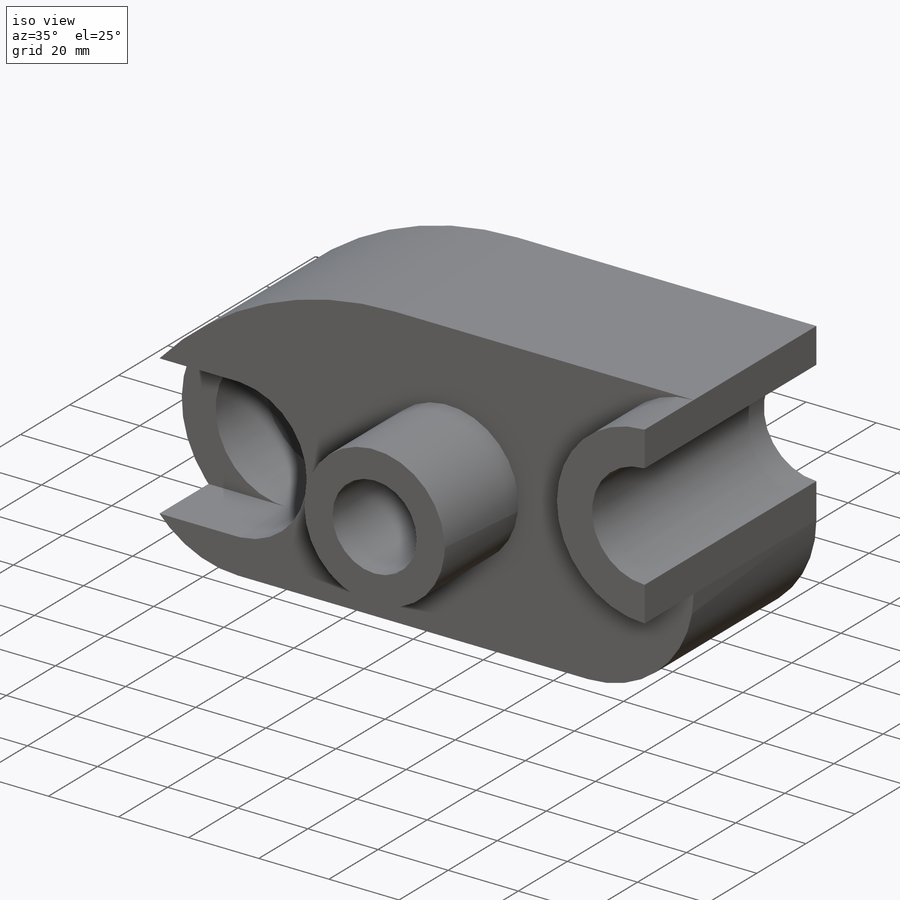
[diagram: iso view]
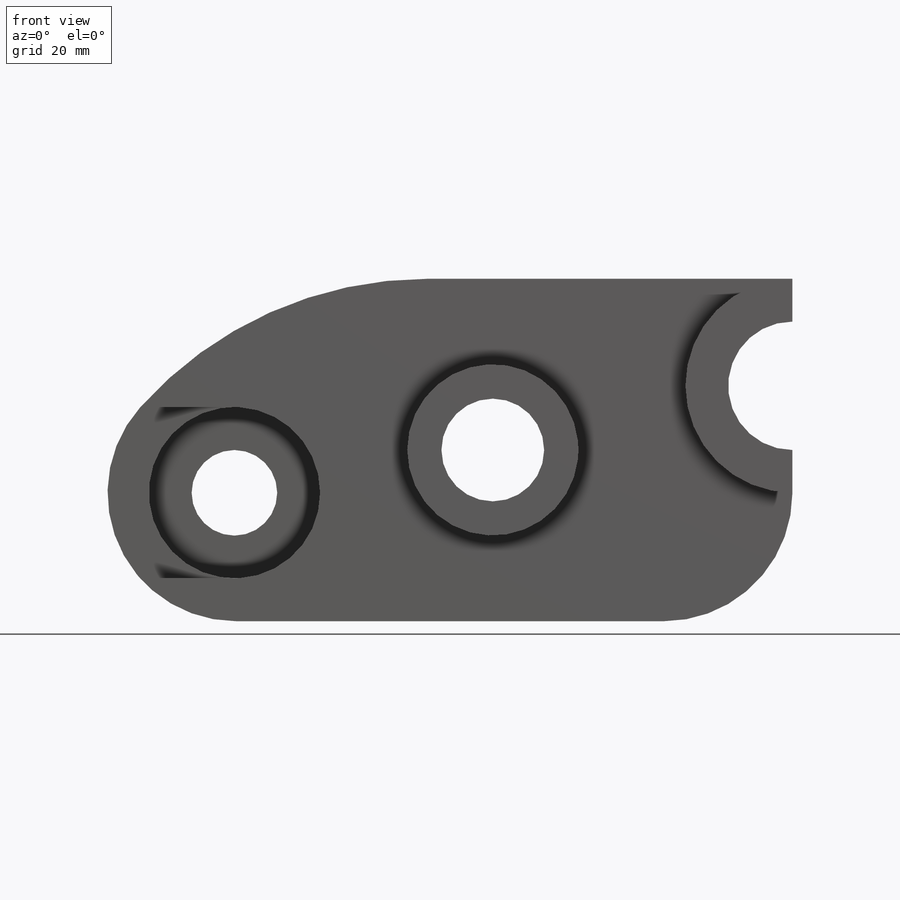
[diagram: front view]
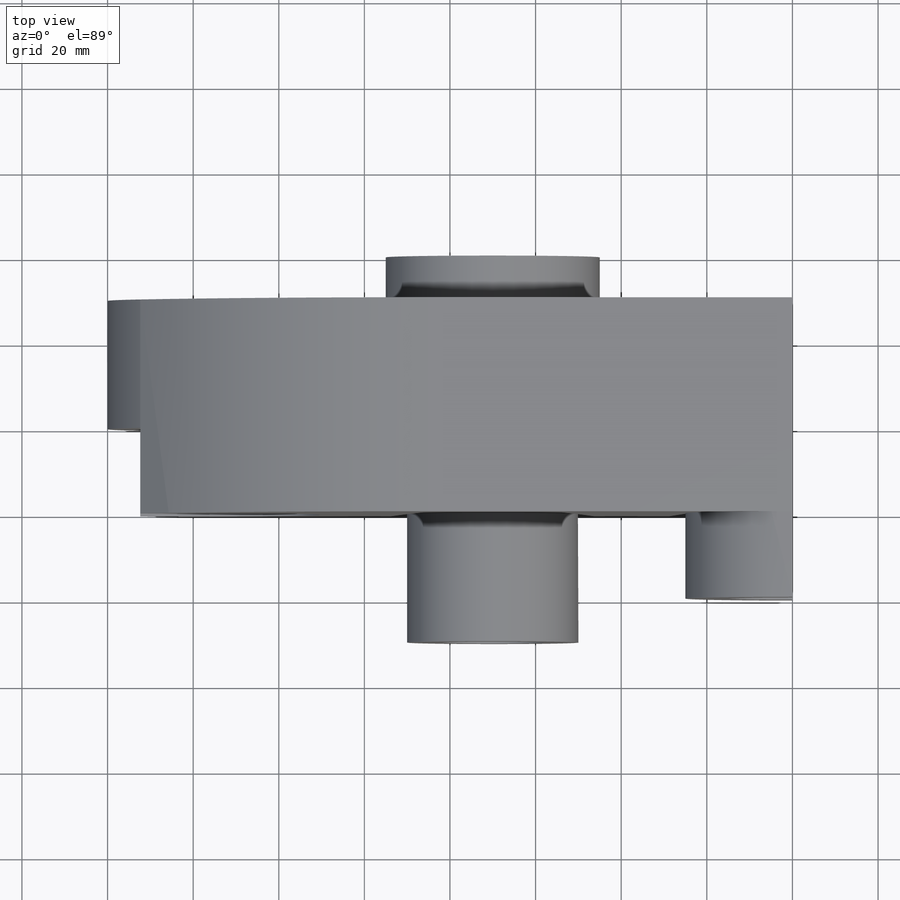
[diagram: top view]
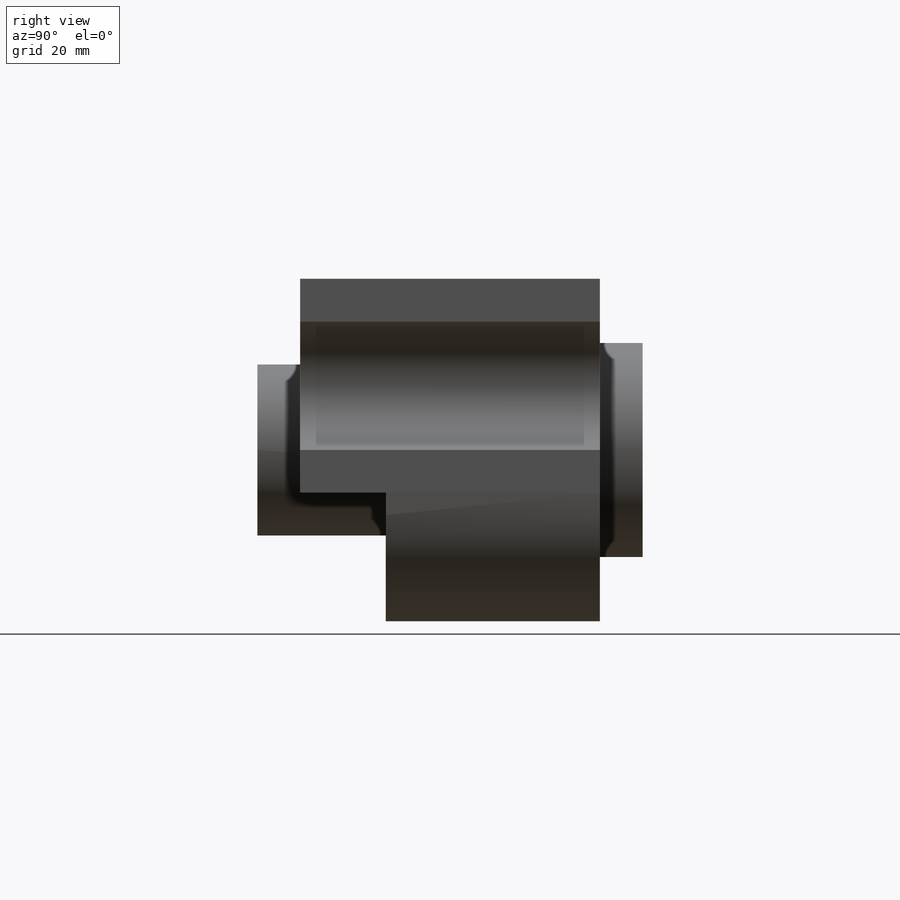
[diagram: right view]
SOLIDWORKS PART (.sldprt)
format: sldprt  version: not decoded by parser v0  size: 372,224 bytes
history: native  units: mm
features: sketch x14, cut_extrude x11, extrude x3, material x1, plane x1 (+13 scaffold rows collapsed)
feature tree (43):
  scaffold x13  (default folders/planes/origin — collapsed)
  material  "Material <not specified>"
  sketch  "Sketch1"  dims[D1=160.0mm D2=80.0mm]
  extrude  "Boss-Extrude1"  Depth=90mm
  sketch  "Sketch2"  dims[D1=30.0mm D4=15.0mm D5=25.0mm D2=30.0mm D3=30.0mm D6=0.0mm]
  cut_extrude  "Cut-Extrude1"  Depth=90mm
  sketch  "Sketch3"  dims[D1=30.0mm D2=30.0mm D3=30.0mm D4=0.0mm]
  cut_extrude  "Cut-Extrude2"  Depth=90mm
  sketch  "Sketch4"  dims[D1=10.0mm D2=15.0mm D3=50.0mm D4=15.0mm]
  cut_extrude  "Cut-Extrude3"  Depth=215mm
  sketch  "Sketch5"  dims[D1=50.0mm D4=15.0mm D2=90.0mm D3=40.0mm D5=~58.81966mm D6=90.0mm]
  cut_extrude  "Cut-Extrude4"  Depth=10mm
  sketch  "Sketch6"  dims[D1=30.0mm D2=30.0mm D3=20.0mm D4=~74.72136mm]
  cut_extrude  "Cut-Extrude6"  Depth=263mm
  plane  "Plane1"  Offset=60mm
  sketch  "Sketch7"  dims[D1=160.0mm D2=80.0mm]
  cut_extrude  "Cut-Extrude7"  Depth=263mm
  sketch  "Sketch8"  dims[D1=40.0mm D2=40.0mm D3=70.0mm]
  extrude  "Boss-Extrude2"  Depth=30mm
  sketch  "Sketch9"  dims[D1=22.0mm]
  cut_extrude  "Cut-Extrude8"  Depth=117mm
  sketch  "Sketch10"
  extrude  "Boss-Extrude3"  Depth=20mm
  sketch  "Sketch11"  dims[D1=22.0mm D2=22.0mm D3=10.0mm D4=10.0mm D5=50.0mm]
  cut_extrude  "Cut-Extrude9"  Depth=20mm
  sketch  "Sketch12"
  cut_extrude  "Cut-Extrude10"  Depth=40mm
  sketch  "Sketch13"  dims[D1=20.0mm]
  cut_extrude  "Cut-Extrude11"  Depth=40mm
  sketch  "Sketch14"  dims[D1=24.0mm]
  cut_extrude  "Cut-Extrude12"  Depth=114mm
decode coverage: 26 of 28 modeling features carry decoded parameters
note: ~ marks probable driven/reference dimensions
note: suppression state not decoded; provenance and decode notes live in map.json
